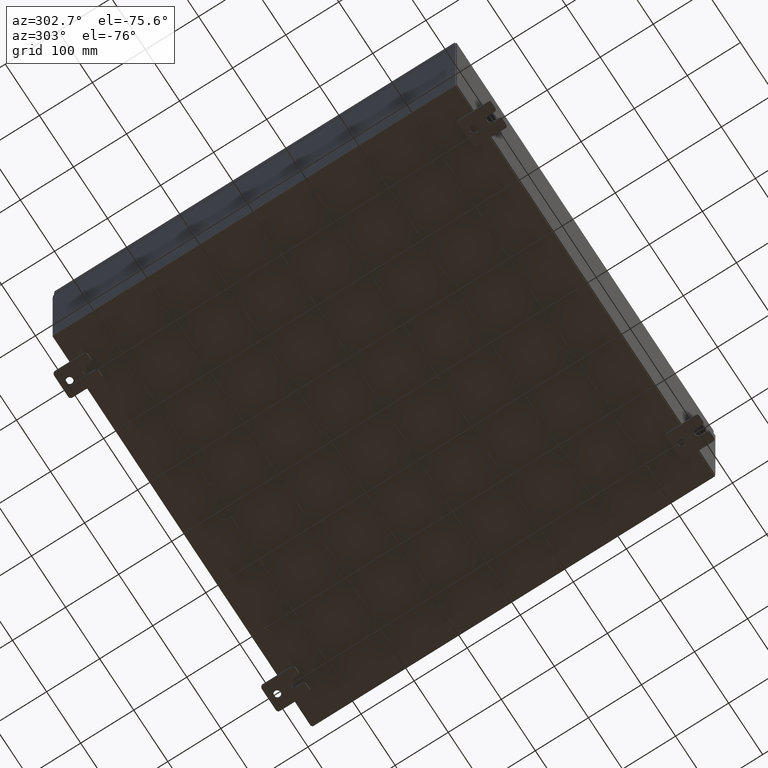
[diagram: clean part render]
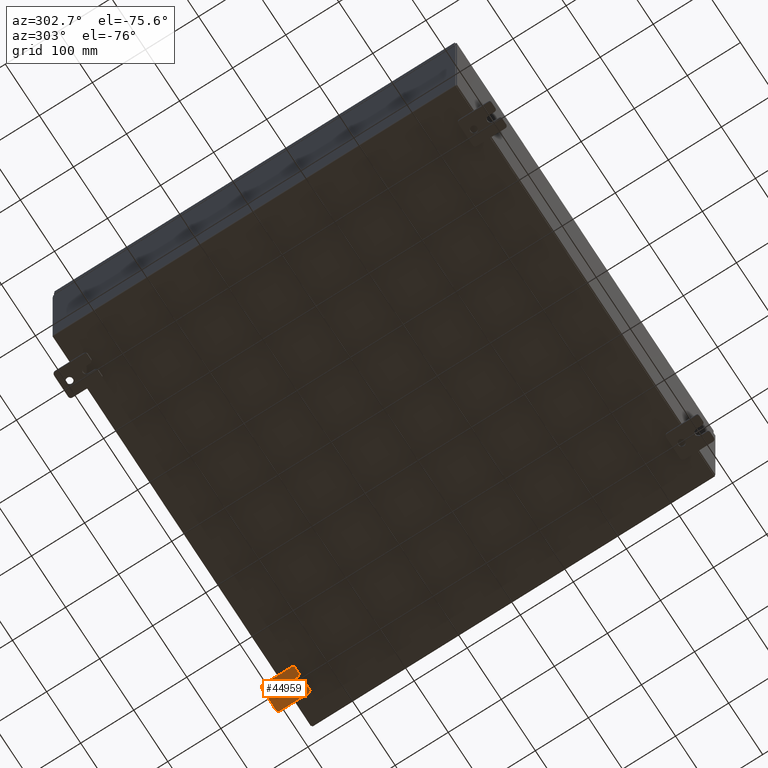
[diagram: same view with one face highlighted and labeled with its STEP entity id]
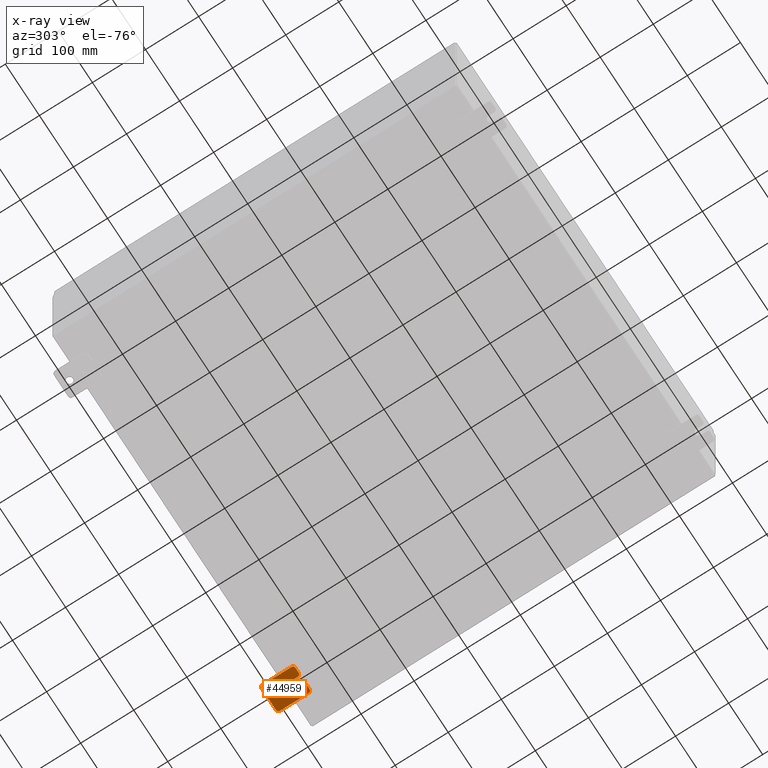
[diagram: x-ray of the same camera — body ghosted, the highlighted face saturated]
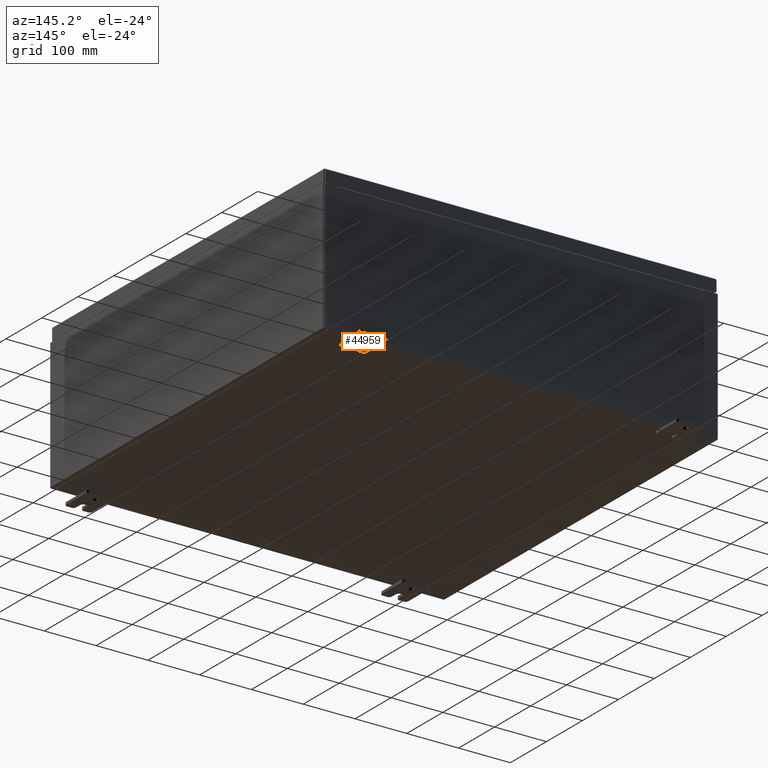
[diagram: same view with one face highlighted and labeled with its STEP entity id]
A machine part, auxiliary view. The second image highlights one B-rep face of the part: STEP entity #44959.
The next image is the same camera in x-ray: the body ghosted, the highlighted face saturated — about 0% of this face is hidden behind the body in this view.
A second angle (auxiliary view) of the same face is appended — the face is thin or edge-on in the first view.
In plain terms, the highlighted planar face has unit normal (0, 0, 1).
Its self-contained STEP definition (entity closure, byte-faithful):
#903 = DIRECTION ( 'NONE',  ( 1.000000000000000000, 0.0000000000000000000, -0.0000000000000000000 ) ) ;
#953 = FACE_BOUND ( 'NONE', #30184, .T. ) ;
#1633 = ORIENTED_EDGE ( 'NONE', *, *, #61394, .F. ) ;
#1819 = AXIS2_PLACEMENT_3D ( 'NONE', #49872, #19650, #54954 ) ;
#2119 = AXIS2_PLACEMENT_3D ( 'NONE', #11856, #47234, #17024 ) ;
#2200 = CARTESIAN_POINT ( 'NONE',  ( -0.1880000000000010000, 0.6249999999999992200, -7.703811342100550500E-020 ) ) ;
#3092 = CARTESIAN_POINT ( 'NONE',  ( -0.1879999999999997800, -1.060000000000001200, 0.9999999999999988900 ) ) ;
#3670 = ORIENTED_EDGE ( 'NONE', *, *, #49303, .T. ) ;
#4003 = CARTESIAN_POINT ( 'NONE',  ( -0.1879999999999997800, 1.059999999999993600, -0.8100000000000089400 ) ) ;
#4570 = CARTESIAN_POINT ( 'NONE',  ( -0.1880000000000004700, -1.060000000000003400, -0.2499999999999994400 ) ) ;
#4719 = VERTEX_POINT ( 'NONE', #21257 ) ;
#4963 = EDGE_CURVE ( 'NONE', #36992, #4719, #19265, .T. ) ;
#6201 = DIRECTION ( 'NONE',  ( -0.0000000000000000000, 0.0000000000000000000, -1.000000000000000000 ) ) ;
#6300 = DIRECTION ( 'NONE',  ( -6.556435184794182400E-016, -1.000000000000000000, -1.639108796198545600E-016 ) ) ;
#6889 = ORIENTED_EDGE ( 'NONE', *, *, #6951, .F. ) ;
#6951 = EDGE_CURVE ( 'NONE', #9875, #12985, #53094, .T. ) ;
#7125 = ORIENTED_EDGE ( 'NONE', *, *, #11285, .T. ) ;
#7196 = CARTESIAN_POINT ( 'NONE',  ( -0.1879999999999997800, -1.250000000000005600, -1.000000000000006200 ) ) ;
#7270 = DIRECTION ( 'NONE',  ( 0.0000000000000000000, 0.0000000000000000000, -1.000000000000000000 ) ) ;
#7463 = EDGE_CURVE ( 'NONE', #18117, #49973, #25459, .T. ) ;
#8062 = CARTESIAN_POINT ( 'NONE',  ( -0.1880000000000001900, -0.6249999999999992200, 6.829619984160658000E-017 ) ) ;
#8283 = DIRECTION ( 'NONE',  ( -6.829619984160660000E-016, -1.000000000000000000, 0.0000000000000000000 ) ) ;
#8341 = CARTESIAN_POINT ( 'NONE',  ( -0.1880000000000004700, -1.060000000000002100, 0.2500000000000005000 ) ) ;
#8356 = DIRECTION ( 'NONE',  ( -1.000000000000000000, 6.523827964459549700E-016, 5.163192708025532000E-017 ) ) ;
#9114 = DIRECTION ( 'NONE',  ( 0.0000000000000000000, 0.0000000000000000000, -1.000000000000000000 ) ) ;
#9580 = AXIS2_PLACEMENT_3D ( 'NONE', #23861, #59144, #28924 ) ;
#9875 = VERTEX_POINT ( 'NONE', #43415 ) ;
#10011 = DIRECTION ( 'NONE',  ( -1.000000000000000000, -0.0000000000000000000, 0.0000000000000000000 ) ) ;
#10025 = EDGE_CURVE ( 'NONE', #49146, #44032, #56832, .T. ) ;
#10734 = VERTEX_POINT ( 'NONE', #32222 ) ;
#11175 = CARTESIAN_POINT ( 'NONE',  ( -0.1880000000000005800, -1.250000000000003800, 0.2500000000000005000 ) ) ;
#11285 = EDGE_CURVE ( 'NONE', #9875, #53058, #48040, .T. ) ;
#11628 = ORIENTED_EDGE ( 'NONE', *, *, #4963, .F. ) ;
#11804 = CARTESIAN_POINT ( 'NONE',  ( -0.1879999999999997800, -1.060000000000001600, 0.8099999999999978300 ) ) ;
#11856 = CARTESIAN_POINT ( 'NONE',  ( -0.1879999999999997800, -1.060000000000004100, -0.8100000000000050500 ) ) ;
#12178 = VERTEX_POINT ( 'NONE', #45572 ) ;
#12430 = ORIENTED_EDGE ( 'NONE', *, *, #47102, .F. ) ;
#12985 = VERTEX_POINT ( 'NONE', #65234 ) ;
#13079 = AXIS2_PLACEMENT_3D ( 'NONE', #2200, #37635, #7270 ) ;
#13101 = CARTESIAN_POINT ( 'NONE',  ( -0.1879999999999997800, -1.250000000000002400, 0.8099999999999980500 ) ) ;
#13309 = EDGE_CURVE ( 'NONE', #10734, #28888, #34503, .T. ) ;
#13380 = AXIS2_PLACEMENT_3D ( 'NONE', #19376, #10011, #55863 ) ;
#14448 = FACE_OUTER_BOUND ( 'NONE', #22731, .T. ) ;
#15555 = LINE ( 'NONE', #47403, #52675 ) ;
#16182 = CARTESIAN_POINT ( 'NONE',  ( -0.1879999999999997800, 1.249999999999994200, -1.000000000000010400 ) ) ;
#16309 = DIRECTION ( 'NONE',  ( 6.556435184794182400E-016, 1.000000000000000000, 0.0000000000000000000 ) ) ;
#16476 = LINE ( 'NONE', #11175, #28365 ) ;
#17024 = DIRECTION ( 'NONE',  ( 0.0000000000000000000, 0.0000000000000000000, -1.000000000000000000 ) ) ;
#17842 = DIRECTION ( 'NONE',  ( 0.0000000000000000000, 1.000000000000000000, -1.639108796198558100E-015 ) ) ;
#18117 = VERTEX_POINT ( 'NONE', #13101 ) ;
#18829 = CARTESIAN_POINT ( 'NONE',  ( -0.1879999999999997800, 1.249999999999994700, -0.8100000000000092700 ) ) ;
#18974 = DIRECTION ( 'NONE',  ( 1.000000000000000000, -0.0000000000000000000, -5.163192708025532000E-017 ) ) ;
#19265 = CIRCLE ( 'NONE', #22155, 0.2499999999999999200 ) ;
#19376 = CARTESIAN_POINT ( 'NONE',  ( -0.1879999999999997800, 1.059999999999996300, 0.8099999999999938400 ) ) ;
#19650 = DIRECTION ( 'NONE',  ( -1.000000000000000000, -0.0000000000000000000, 0.0000000000000000000 ) ) ;
#20474 = CIRCLE ( 'NONE', #13079, 0.2499999999999999200 ) ;
#21257 = CARTESIAN_POINT ( 'NONE',  ( -0.1880000000000001900, -0.6249999999999992200, -0.2499999999999998600 ) ) ;
#22155 = AXIS2_PLACEMENT_3D ( 'NONE', #8062, #8356, #8283 ) ;
#22731 = EDGE_LOOP ( 'NONE', ( #49578, #59285, #1633, #46610, #12430, #3670, #29312, #31606, #6889, #7125, #61858, #11628, #52142, #44219 ) ) ;
#23861 = CARTESIAN_POINT ( 'NONE',  ( -0.1879999999999997800, -1.060000000000003400, -0.4400000000000005000 ) ) ;
#25459 = CIRCLE ( 'NONE', #51789, 0.1900000000000011100 ) ;
#25850 = DIRECTION ( 'NONE',  ( -1.000000000000000000, -0.0000000000000000000, 0.0000000000000000000 ) ) ;
#27519 = CIRCLE ( 'NONE', #35869, 0.2499999999999999200 ) ;
#28276 = CARTESIAN_POINT ( 'NONE',  ( -0.1879999999999997800, 1.059999999999996500, 0.9999999999999953400 ) ) ;
#28365 = VECTOR ( 'NONE', #16309, 39.37007874015748100 ) ;
#28393 = ORIENTED_EDGE ( 'NONE', *, *, #64310, .T. ) ;
#28669 = EDGE_CURVE ( 'NONE', #10734, #12985, #56115, .T. ) ;
#28888 = VERTEX_POINT ( 'NONE', #38409 ) ;
#28924 = DIRECTION ( 'NONE',  ( 0.0000000000000000000, 0.0000000000000000000, -1.000000000000000000 ) ) ;
#29312 = ORIENTED_EDGE ( 'NONE', *, *, #13309, .F. ) ;
#30184 = EDGE_LOOP ( 'NONE', ( #28393, #41748 ) ) ;
#30345 = DIRECTION ( 'NONE',  ( 0.0000000000000000000, 7.189073667537492800E-016, -1.000000000000000000 ) ) ;
#31503 = CARTESIAN_POINT ( 'NONE',  ( -0.1879999999999997800, 0.0000000000000000000, 0.0000000000000000000 ) ) ;
#31606 = ORIENTED_EDGE ( 'NONE', *, *, #28669, .T. ) ;
#31852 = VERTEX_POINT ( 'NONE', #47174 ) ;
#32222 = CARTESIAN_POINT ( 'NONE',  ( -0.1879999999999997800, -1.060000000000004500, -1.000000000000006400 ) ) ;
#32460 = EDGE_CURVE ( 'NONE', #52896, #36992, #16476, .T. ) ;
#32606 = VERTEX_POINT ( 'NONE', #52252 ) ;
#33853 = AXIS2_PLACEMENT_3D ( 'NONE', #31503, #903, #6201 ) ;
#34503 = LINE ( 'NONE', #7196, #43148 ) ;
#35797 = VECTOR ( 'NONE', #46409, 39.37007874015748100 ) ;
#35869 = AXIS2_PLACEMENT_3D ( 'NONE', #49193, #18974, #54279 ) ;
#36560 = PLANE ( 'NONE',  #33853 ) ;
#36656 = CARTESIAN_POINT ( 'NONE',  ( -0.1880000000000001900, -0.6249999999999992200, -0.2499999999999993900 ) ) ;
#36992 = VERTEX_POINT ( 'NONE', #42253 ) ;
#37635 = DIRECTION ( 'NONE',  ( 1.000000000000000000, -0.0000000000000000000, -5.163192708025532000E-017 ) ) ;
#38409 = CARTESIAN_POINT ( 'NONE',  ( -0.1879999999999997800, 1.059999999999993400, -1.000000000000010000 ) ) ;
#38672 = VECTOR ( 'NONE', #51216, 39.37007874015748100 ) ;
#39438 = DIRECTION ( 'NONE',  ( -1.000000000000000000, -0.0000000000000000000, 0.0000000000000000000 ) ) ;
#41748 = ORIENTED_EDGE ( 'NONE', *, *, #60481, .T. ) ;
#42253 = CARTESIAN_POINT ( 'NONE',  ( -0.1880000000000001900, -0.6249999999999992200, 0.2500000000000005000 ) ) ;
#42294 = DIRECTION ( 'NONE',  ( 0.0000000000000000000, -1.000000000000000000, 1.639108796198558100E-015 ) ) ;
#42509 = DIRECTION ( 'NONE',  ( 0.0000000000000000000, -1.639108796198553600E-015, -1.000000000000000000 ) ) ;
#43044 = EDGE_CURVE ( 'NONE', #4719, #53058, #53322, .T. ) ;
#43148 = VECTOR ( 'NONE', #17842, 39.37007874015748100 ) ;
#43415 = CARTESIAN_POINT ( 'NONE',  ( -0.1879999999999997800, -1.250000000000004700, -0.4400000000000002200 ) ) ;
#43769 = CARTESIAN_POINT ( 'NONE',  ( -0.1879999999999997800, 1.249999999999997300, 0.8099999999999935000 ) ) ;
#44032 = VERTEX_POINT ( 'NONE', #43769 ) ;
#44219 = ORIENTED_EDGE ( 'NONE', *, *, #52212, .T. ) ;
#44959 = ADVANCED_FACE ( 'NONE', ( #953, #14448 ), #36560, .F. ) ;
#45572 = CARTESIAN_POINT ( 'NONE',  ( -0.1880000000000010000, 0.6249999999999992200, -0.2499999999999999200 ) ) ;
#45707 = CARTESIAN_POINT ( 'NONE',  ( -0.1879999999999997800, -1.250000000000002200, 0.9999999999999992200 ) ) ;
#46409 = DIRECTION ( 'NONE',  ( 0.0000000000000000000, 1.639108796198553600E-015, 1.000000000000000000 ) ) ;
#46610 = ORIENTED_EDGE ( 'NONE', *, *, #10025, .T. ) ;
#47083 = AXIS2_PLACEMENT_3D ( 'NONE', #4003, #39438, #9114 ) ;
#47102 = EDGE_CURVE ( 'NONE', #52928, #44032, #62706, .T. ) ;
#47174 = CARTESIAN_POINT ( 'NONE',  ( -0.1879999999999997800, -1.250000000000003100, 0.4400000000000020000 ) ) ;
#47234 = DIRECTION ( 'NONE',  ( -1.000000000000000000, -0.0000000000000000000, 0.0000000000000000000 ) ) ;
#47403 = CARTESIAN_POINT ( 'NONE',  ( -0.1879999999999997800, 1.249999999999997600, 0.9999999999999951200 ) ) ;
#48040 = CIRCLE ( 'NONE', #9580, 0.1900000000000011100 ) ;
#49146 = VERTEX_POINT ( 'NONE', #28276 ) ;
#49193 = CARTESIAN_POINT ( 'NONE',  ( -0.1880000000000010000, 0.6249999999999992200, -7.703811342100550500E-020 ) ) ;
#49303 = EDGE_CURVE ( 'NONE', #52928, #28888, #54571, .T. ) ;
#49578 = ORIENTED_EDGE ( 'NONE', *, *, #57981, .F. ) ;
#49872 = CARTESIAN_POINT ( 'NONE',  ( -0.1879999999999997800, -1.060000000000002100, 0.4400000000000016700 ) ) ;
#49973 = VERTEX_POINT ( 'NONE', #3092 ) ;
#50098 = CIRCLE ( 'NONE', #1819, 0.1900000000000011400 ) ;
#51216 = DIRECTION ( 'NONE',  ( 0.0000000000000000000, -1.639108796198553600E-015, -1.000000000000000000 ) ) ;
#51789 = AXIS2_PLACEMENT_3D ( 'NONE', #11804, #25850, #30345 ) ;
#52142 = ORIENTED_EDGE ( 'NONE', *, *, #32460, .F. ) ;
#52212 = EDGE_CURVE ( 'NONE', #52896, #31852, #50098, .T. ) ;
#52252 = CARTESIAN_POINT ( 'NONE',  ( -0.1880000000000010000, 0.6249999999999992200, 0.2499999999999999200 ) ) ;
#52675 = VECTOR ( 'NONE', #42294, 39.37007874015748100 ) ;
#52896 = VERTEX_POINT ( 'NONE', #8341 ) ;
#52928 = VERTEX_POINT ( 'NONE', #18829 ) ;
#53058 = VERTEX_POINT ( 'NONE', #4570 ) ;
#53094 = LINE ( 'NONE', #61911, #65011 ) ;
#53322 = LINE ( 'NONE', #36656, #54882 ) ;
#54279 = DIRECTION ( 'NONE',  ( 0.0000000000000000000, 0.0000000000000000000, -1.000000000000000000 ) ) ;
#54571 = CIRCLE ( 'NONE', #47083, 0.1900000000000011100 ) ;
#54882 = VECTOR ( 'NONE', #6300, 39.37007874015748100 ) ;
#54954 = DIRECTION ( 'NONE',  ( 0.0000000000000000000, 0.0000000000000000000, -1.000000000000000000 ) ) ;
#55863 = DIRECTION ( 'NONE',  ( 0.0000000000000000000, 0.0000000000000000000, -1.000000000000000000 ) ) ;
#56115 = CIRCLE ( 'NONE', #2119, 0.1900000000000011100 ) ;
#56832 = CIRCLE ( 'NONE', #13380, 0.1900000000000011100 ) ;
#57981 = EDGE_CURVE ( 'NONE', #18117, #31852, #65614, .T. ) ;
#59144 = DIRECTION ( 'NONE',  ( -1.000000000000000000, -0.0000000000000000000, 0.0000000000000000000 ) ) ;
#59285 = ORIENTED_EDGE ( 'NONE', *, *, #7463, .T. ) ;
#60481 = EDGE_CURVE ( 'NONE', #32606, #12178, #27519, .T. ) ;
#61394 = EDGE_CURVE ( 'NONE', #49146, #49973, #15555, .T. ) ;
#61858 = ORIENTED_EDGE ( 'NONE', *, *, #43044, .F. ) ;
#61911 = CARTESIAN_POINT ( 'NONE',  ( -0.1879999999999997800, -1.250000000000002200, 0.9999999999999992200 ) ) ;
#62706 = LINE ( 'NONE', #16182, #35797 ) ;
#64310 = EDGE_CURVE ( 'NONE', #12178, #32606, #20474, .T. ) ;
#65011 = VECTOR ( 'NONE', #42509, 39.37007874015748100 ) ;
#65234 = CARTESIAN_POINT ( 'NONE',  ( -0.1879999999999997800, -1.250000000000005300, -0.8100000000000047200 ) ) ;
#65614 = LINE ( 'NONE', #45707, #38672 ) ;